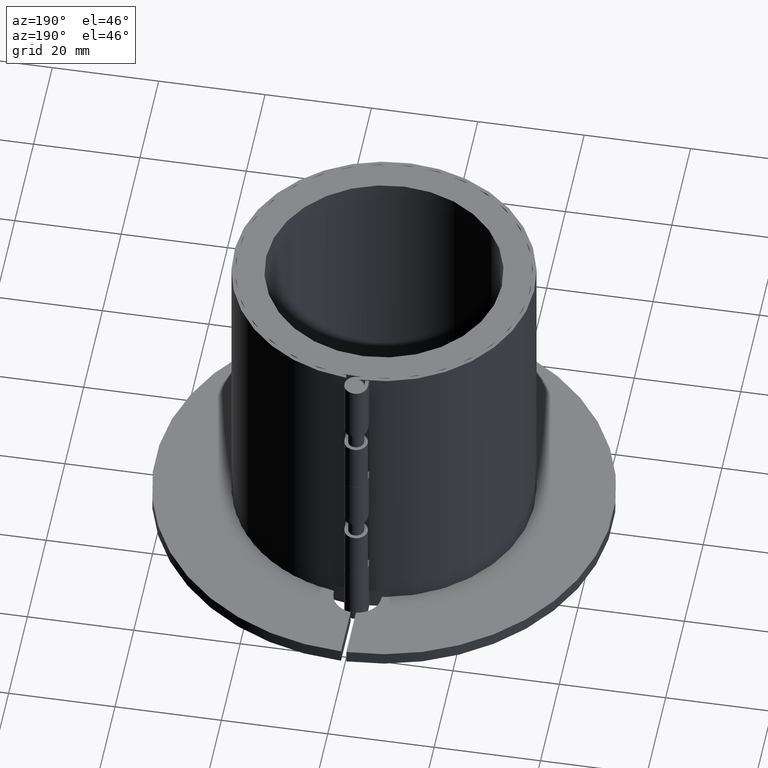
[diagram: clean part render]
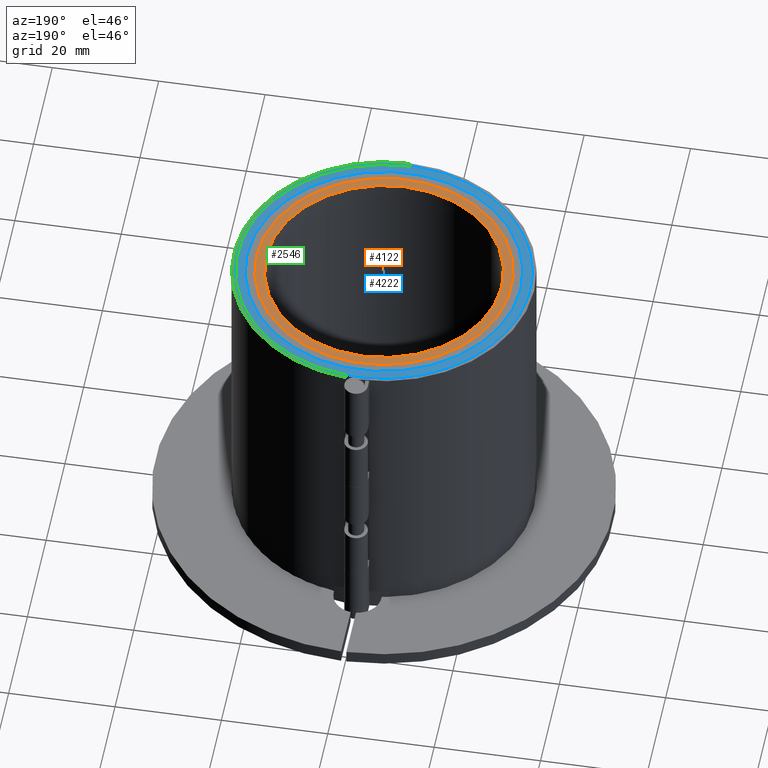
[diagram: same view with three faces highlighted in distinct colors, each labeled with its STEP entity id]
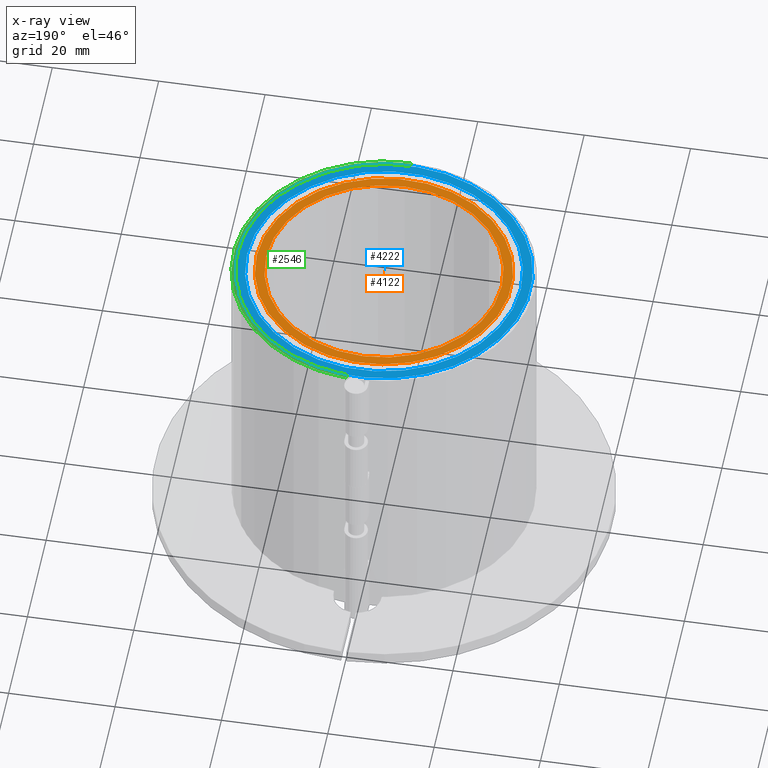
[diagram: x-ray of the same camera — body ghosted, the three highlighted faces saturated]
A machine part, auxiliary view with three faces highlighted in distinct colors.
The next image is the same camera in x-ray (body ghosted, the three faces saturated) — at least one of them is partly hidden behind the body in this view.
Their STEP definitions:

[orange] entity #4122 — the highlighted planar face has unit normal (0, 0, 1).
#4080=CARTESIAN_POINT('',(22.149999999999984,-6.231264E-015,60.0));
#4081=VERTEX_POINT('',#4080);
#4082=CARTESIAN_POINT('',(-1.453844E-014,-5.255141E-015,60.0));
#4083=DIRECTION('',(0.0,0.0,-1.0));
#4084=DIRECTION('',(-1.0,0.0,0.0));
#4085=AXIS2_PLACEMENT_3D('',#4082,#4083,#4084);
#4086=CIRCLE('',#4085,22.149999999999999);
#4087=EDGE_CURVE('',#4081,#4081,#4086,.T.);
#4103=CARTESIAN_POINT('',(-1.601901E-014,-5.873219E-015,60.0));
#4104=DIRECTION('',(0.0,0.0,1.0));
#4105=DIRECTION('',(1.0,0.0,0.0));
#4106=AXIS2_PLACEMENT_3D('',#4103,#4104,#4105);
#4107=PLANE('',#4106);
#4108=CARTESIAN_POINT('',(23.949999999999982,-6.310588E-015,60.0));
#4109=VERTEX_POINT('',#4108);
#4110=CARTESIAN_POINT('',(-1.453844E-014,-5.255141E-015,60.0));
#4111=DIRECTION('',(0.0,0.0,-1.0));
#4112=DIRECTION('',(-1.0,0.0,0.0));
#4113=AXIS2_PLACEMENT_3D('',#4110,#4111,#4112);
#4114=CIRCLE('',#4113,23.949999999999999);
#4115=EDGE_CURVE('',#4109,#4109,#4114,.T.);
#4116=ORIENTED_EDGE('',*,*,#4115,.F.);
#4117=EDGE_LOOP('',(#4116));
#4118=FACE_OUTER_BOUND('',#4117,.T.);
#4119=ORIENTED_EDGE('',*,*,#4087,.T.);
#4120=EDGE_LOOP('',(#4119));
#4121=FACE_BOUND('',#4120,.T.);
#4122=ADVANCED_FACE('',(#4118,#4121),#4107,.T.);

[blue] entity #4222 — the highlighted planar face has unit normal (0, 0, 1).
#4148=CARTESIAN_POINT('',(25.749999999999989,-6.389911E-015,60.0));
#4149=VERTEX_POINT('',#4148);
#4150=CARTESIAN_POINT('',(-1.453844E-014,-5.255141E-015,60.0));
#4151=DIRECTION('',(0.0,0.0,-1.0));
#4152=DIRECTION('',(-1.0,0.0,0.0));
#4153=AXIS2_PLACEMENT_3D('',#4150,#4151,#4152);
#4154=CIRCLE('',#4153,25.75);
#4155=EDGE_CURVE('',#4149,#4149,#4154,.T.);
#4188=CARTESIAN_POINT('',(27.549999999999986,-6.469235E-015,60.0));
#4189=VERTEX_POINT('',#4188);
#4190=CARTESIAN_POINT('',(-1.453844E-014,-5.255141E-015,60.0));
#4191=DIRECTION('',(0.0,0.0,1.0));
#4192=DIRECTION('',(-1.0,0.0,0.0));
#4193=AXIS2_PLACEMENT_3D('',#4190,#4191,#4192);
#4194=CIRCLE('',#4193,27.550000000000004);
#4195=EDGE_CURVE('',#4189,#4189,#4194,.T.);
#4211=CARTESIAN_POINT('',(-1.589422E-014,-4.717828E-015,60.0));
#4212=DIRECTION('',(0.0,0.0,1.0));
#4213=DIRECTION('',(1.0,0.0,0.0));
#4214=AXIS2_PLACEMENT_3D('',#4211,#4212,#4213);
#4215=PLANE('',#4214);
#4216=ORIENTED_EDGE('',*,*,#4195,.T.);
#4217=EDGE_LOOP('',(#4216));
#4218=FACE_OUTER_BOUND('',#4217,.T.);
#4219=ORIENTED_EDGE('',*,*,#4155,.T.);
#4220=EDGE_LOOP('',(#4219));
#4221=FACE_BOUND('',#4220,.T.);
#4222=ADVANCED_FACE('',(#4218,#4221),#4215,.T.);

[green] entity #2546 — the highlighted planar face has unit normal (0, 0, 1).
#756=CARTESIAN_POINT('',(2.2,27.462019226560876,60.0));
#757=VERTEX_POINT('',#756);
#764=CARTESIAN_POINT('',(2.2,28.164206006915926,60.0));
#765=VERTEX_POINT('',#764);
#766=CARTESIAN_POINT('',(2.2,28.164206006915929,60.0));
#767=DIRECTION('',(0.0,-1.0,0.0));
#768=VECTOR('',#767,0.702186780355046);
#769=LINE('',#766,#768);
#770=EDGE_CURVE('',#765,#757,#769,.T.);
#999=CARTESIAN_POINT('',(-1.065814E-013,-27.550000000000008,60.0));
#1000=VERTEX_POINT('',#999);
#1007=CARTESIAN_POINT('',(-6.217249E-014,-6.661338E-015,60.0));
#1008=DIRECTION('',(0.0,0.0,-1.0));
#1009=DIRECTION('',(0.0,1.0,0.0));
#1010=AXIS2_PLACEMENT_3D('',#1007,#1008,#1009);
#1011=CIRCLE('',#1010,27.550000000000004);
#1012=EDGE_CURVE('',#757,#1000,#1011,.T.);
#2458=CARTESIAN_POINT('',(-1.065814E-013,-28.25,60.0));
#2459=VERTEX_POINT('',#2458);
#2460=CARTESIAN_POINT('',(-6.217249E-014,-6.661338E-015,60.0));
#2461=DIRECTION('',(0.0,0.0,1.0));
#2462=DIRECTION('',(0.0,-1.0,0.0));
#2463=AXIS2_PLACEMENT_3D('',#2460,#2461,#2462);
#2464=CIRCLE('',#2463,28.250000000000007);
#2465=EDGE_CURVE('',#2459,#765,#2464,.T.);
#2530=CARTESIAN_POINT('',(-5.282078E-016,28.25,60.0));
#2531=DIRECTION('',(0.0,0.0,1.0));
#2532=DIRECTION('',(1.0,0.0,0.0));
#2533=AXIS2_PLACEMENT_3D('',#2530,#2531,#2532);
#2534=PLANE('',#2533);
#2535=ORIENTED_EDGE('',*,*,#770,.T.);
#2536=ORIENTED_EDGE('',*,*,#1012,.T.);
#2537=CARTESIAN_POINT('',(-1.065814E-013,-27.550000000000008,60.0));
#2538=DIRECTION('',(0.0,-1.0,0.0));
#2539=VECTOR('',#2538,0.699999999999999);
#2540=LINE('',#2537,#2539);
#2541=EDGE_CURVE('',#1000,#2459,#2540,.T.);
#2542=ORIENTED_EDGE('',*,*,#2541,.T.);
#2543=ORIENTED_EDGE('',*,*,#2465,.T.);
#2544=EDGE_LOOP('',(#2535,#2536,#2542,#2543));
#2545=FACE_OUTER_BOUND('',#2544,.T.);
#2546=ADVANCED_FACE('',(#2545),#2534,.T.);